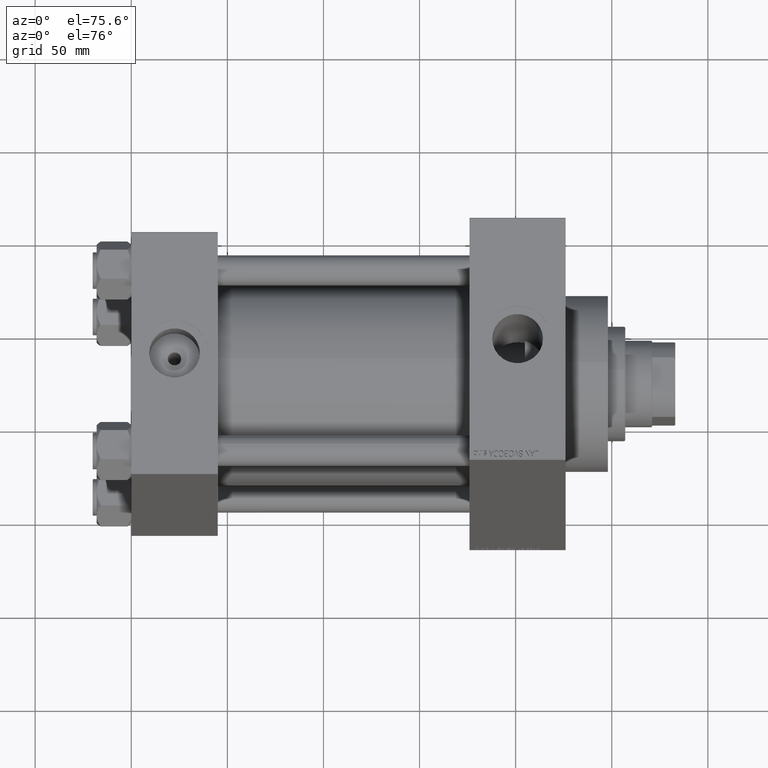
[diagram: clean part render]
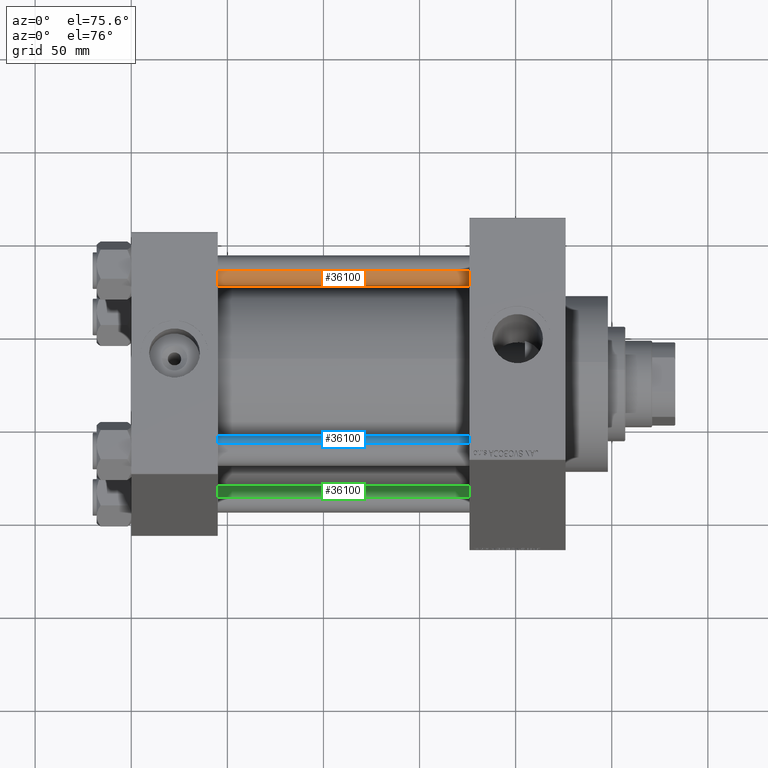
[diagram: same view with three faces highlighted in distinct colors, each labeled with its STEP entity id]
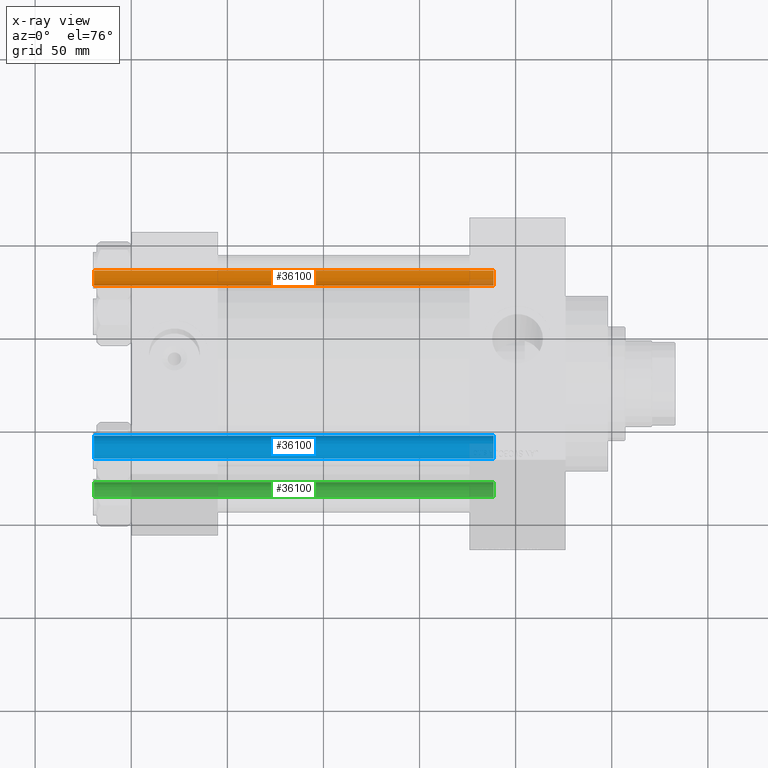
[diagram: x-ray of the same camera — body ghosted, the three highlighted faces saturated]
A machine part, auxiliary view with three faces highlighted in distinct colors.
The next image is the same camera in x-ray (body ghosted, the three faces saturated) — at least one of them is partly hidden behind the body in this view.
Their STEP definitions:

[orange] entity #36100 — the highlighted cylindrical surface (edge-blend (fillet) strip) has radius 8 mm, axis along (-1, -0, 0).
#4 = CIRCLE ( 'NONE', #23968, 8.000000000000000000 ) ;
#347 = CARTESIAN_POINT ( 'NONE',  ( -8.000000000000000000, 0.000000000000000000, 208.4999999999999716 ) ) ;
#489 = CARTESIAN_POINT ( 'NONE',  ( 0.000000000000000000, 0.000000000000000000, 209.0000000000000000 ) ) ;
#1418 = DIRECTION ( 'NONE',  ( 0.000000000000000000, 0.000000000000000000, -1.000000000000000000 ) ) ;
#1479 = CIRCLE ( 'NONE', #37822, 8.000000000000000000 ) ;
#2481 = ORIENTED_EDGE ( 'NONE', *, *, #13907, .T. ) ;
#3496 = EDGE_CURVE ( 'NONE', #47478, #24803, #1479, .T. ) ;
#4343 = DIRECTION ( 'NONE',  ( 1.000000000000000000, 0.000000000000000000, 0.000000000000000000 ) ) ;
#5991 = VECTOR ( 'NONE', #46010, 1000.000000000000000 ) ;
#6610 = EDGE_LOOP ( 'NONE', ( #33314, #23315, #2481, #19896 ) ) ;
#8752 = LINE ( 'NONE', #37147, #5991 ) ;
#10207 = VERTEX_POINT ( 'NONE', #19689 ) ;
#11383 = CARTESIAN_POINT ( 'NONE',  ( 0.000000000000000000, 0.000000000000000000, 208.4999999999999716 ) ) ;
#13907 = EDGE_CURVE ( 'NONE', #39506, #47478, #8752, .T. ) ;
#14095 = EDGE_CURVE ( 'NONE', #10207, #24803, #15002, .T. ) ;
#15002 = LINE ( 'NONE', #47688, #19113 ) ;
#15475 = CARTESIAN_POINT ( 'NONE',  ( 8.000000000000000000, 9.797174393178825657E-16, 0.5000000000000004441 ) ) ;
#18409 = DIRECTION ( 'NONE',  ( -0.000000000000000000, -0.000000000000000000, -1.000000000000000000 ) ) ;
#19113 = VECTOR ( 'NONE', #44524, 1000.000000000000000 ) ;
#19689 = CARTESIAN_POINT ( 'NONE',  ( 8.000000000000000000, 9.797174393178825657E-16, 208.4999999999999716 ) ) ;
#19896 = ORIENTED_EDGE ( 'NONE', *, *, #3496, .T. ) ;
#22087 = CARTESIAN_POINT ( 'NONE',  ( -8.000000000000000000, 0.000000000000000000, 0.5000000000000004441 ) ) ;
#22280 = DIRECTION ( 'NONE',  ( -1.000000000000000000, 0.000000000000000000, 0.000000000000000000 ) ) ;
#23315 = ORIENTED_EDGE ( 'NONE', *, *, #24762, .T. ) ;
#23968 = AXIS2_PLACEMENT_3D ( 'NONE', #11383, #1418, #4343 ) ;
#24762 = EDGE_CURVE ( 'NONE', #10207, #39506, #4, .T. ) ;
#24803 = VERTEX_POINT ( 'NONE', #15475 ) ;
#25199 = CYLINDRICAL_SURFACE ( 'NONE', #45211, 8.000000000000000000 ) ;
#29598 = DIRECTION ( 'NONE',  ( 1.000000000000000000, 0.000000000000000000, 0.000000000000000000 ) ) ;
#32986 = DIRECTION ( 'NONE',  ( -0.000000000000000000, -0.000000000000000000, 1.000000000000000000 ) ) ;
#33178 = FACE_OUTER_BOUND ( 'NONE', #6610, .T. ) ;
#33314 = ORIENTED_EDGE ( 'NONE', *, *, #14095, .F. ) ;
#36100 = ADVANCED_FACE ( 'NONE', ( #33178 ), #25199, .T. ) ;
#37147 = CARTESIAN_POINT ( 'NONE',  ( -8.000000000000000000, 0.000000000000000000, 209.0000000000000000 ) ) ;
#37822 = AXIS2_PLACEMENT_3D ( 'NONE', #40016, #32986, #29598 ) ;
#39506 = VERTEX_POINT ( 'NONE', #347 ) ;
#40016 = CARTESIAN_POINT ( 'NONE',  ( 0.000000000000000000, 0.000000000000000000, 0.5000000000000004441 ) ) ;
#44524 = DIRECTION ( 'NONE',  ( -0.000000000000000000, -0.000000000000000000, -1.000000000000000000 ) ) ;
#45211 = AXIS2_PLACEMENT_3D ( 'NONE', #489, #18409, #22280 ) ;
#46010 = DIRECTION ( 'NONE',  ( -0.000000000000000000, -0.000000000000000000, -1.000000000000000000 ) ) ;
#47478 = VERTEX_POINT ( 'NONE', #22087 ) ;
#47688 = CARTESIAN_POINT ( 'NONE',  ( 8.000000000000000000, 9.797174393178825657E-16, 209.0000000000000000 ) ) ;

[blue] entity #36100 — the highlighted cylindrical surface (edge-blend (fillet) strip) has radius 8 mm, axis along (1, 0, 0).
#4 = CIRCLE ( 'NONE', #23968, 8.000000000000000000 ) ;
#347 = CARTESIAN_POINT ( 'NONE',  ( -8.000000000000000000, 0.000000000000000000, 208.4999999999999716 ) ) ;
#489 = CARTESIAN_POINT ( 'NONE',  ( 0.000000000000000000, 0.000000000000000000, 209.0000000000000000 ) ) ;
#1418 = DIRECTION ( 'NONE',  ( 0.000000000000000000, 0.000000000000000000, -1.000000000000000000 ) ) ;
#1479 = CIRCLE ( 'NONE', #37822, 8.000000000000000000 ) ;
#2481 = ORIENTED_EDGE ( 'NONE', *, *, #13907, .T. ) ;
#3496 = EDGE_CURVE ( 'NONE', #47478, #24803, #1479, .T. ) ;
#4343 = DIRECTION ( 'NONE',  ( 1.000000000000000000, 0.000000000000000000, 0.000000000000000000 ) ) ;
#5991 = VECTOR ( 'NONE', #46010, 1000.000000000000000 ) ;
#6610 = EDGE_LOOP ( 'NONE', ( #33314, #23315, #2481, #19896 ) ) ;
#8752 = LINE ( 'NONE', #37147, #5991 ) ;
#10207 = VERTEX_POINT ( 'NONE', #19689 ) ;
#11383 = CARTESIAN_POINT ( 'NONE',  ( 0.000000000000000000, 0.000000000000000000, 208.4999999999999716 ) ) ;
#13907 = EDGE_CURVE ( 'NONE', #39506, #47478, #8752, .T. ) ;
#14095 = EDGE_CURVE ( 'NONE', #10207, #24803, #15002, .T. ) ;
#15002 = LINE ( 'NONE', #47688, #19113 ) ;
#15475 = CARTESIAN_POINT ( 'NONE',  ( 8.000000000000000000, 9.797174393178825657E-16, 0.5000000000000004441 ) ) ;
#18409 = DIRECTION ( 'NONE',  ( -0.000000000000000000, -0.000000000000000000, -1.000000000000000000 ) ) ;
#19113 = VECTOR ( 'NONE', #44524, 1000.000000000000000 ) ;
#19689 = CARTESIAN_POINT ( 'NONE',  ( 8.000000000000000000, 9.797174393178825657E-16, 208.4999999999999716 ) ) ;
#19896 = ORIENTED_EDGE ( 'NONE', *, *, #3496, .T. ) ;
#22087 = CARTESIAN_POINT ( 'NONE',  ( -8.000000000000000000, 0.000000000000000000, 0.5000000000000004441 ) ) ;
#22280 = DIRECTION ( 'NONE',  ( -1.000000000000000000, 0.000000000000000000, 0.000000000000000000 ) ) ;
#23315 = ORIENTED_EDGE ( 'NONE', *, *, #24762, .T. ) ;
#23968 = AXIS2_PLACEMENT_3D ( 'NONE', #11383, #1418, #4343 ) ;
#24762 = EDGE_CURVE ( 'NONE', #10207, #39506, #4, .T. ) ;
#24803 = VERTEX_POINT ( 'NONE', #15475 ) ;
#25199 = CYLINDRICAL_SURFACE ( 'NONE', #45211, 8.000000000000000000 ) ;
#29598 = DIRECTION ( 'NONE',  ( 1.000000000000000000, 0.000000000000000000, 0.000000000000000000 ) ) ;
#32986 = DIRECTION ( 'NONE',  ( -0.000000000000000000, -0.000000000000000000, 1.000000000000000000 ) ) ;
#33178 = FACE_OUTER_BOUND ( 'NONE', #6610, .T. ) ;
#33314 = ORIENTED_EDGE ( 'NONE', *, *, #14095, .F. ) ;
#36100 = ADVANCED_FACE ( 'NONE', ( #33178 ), #25199, .T. ) ;
#37147 = CARTESIAN_POINT ( 'NONE',  ( -8.000000000000000000, 0.000000000000000000, 209.0000000000000000 ) ) ;
#37822 = AXIS2_PLACEMENT_3D ( 'NONE', #40016, #32986, #29598 ) ;
#39506 = VERTEX_POINT ( 'NONE', #347 ) ;
#40016 = CARTESIAN_POINT ( 'NONE',  ( 0.000000000000000000, 0.000000000000000000, 0.5000000000000004441 ) ) ;
#44524 = DIRECTION ( 'NONE',  ( -0.000000000000000000, -0.000000000000000000, -1.000000000000000000 ) ) ;
#45211 = AXIS2_PLACEMENT_3D ( 'NONE', #489, #18409, #22280 ) ;
#46010 = DIRECTION ( 'NONE',  ( -0.000000000000000000, -0.000000000000000000, -1.000000000000000000 ) ) ;
#47478 = VERTEX_POINT ( 'NONE', #22087 ) ;
#47688 = CARTESIAN_POINT ( 'NONE',  ( 8.000000000000000000, 9.797174393178825657E-16, 209.0000000000000000 ) ) ;

[green] entity #36100 — the highlighted cylindrical surface (edge-blend (fillet) strip) has radius 8 mm, axis along (-1, 0, 0).
#4 = CIRCLE ( 'NONE', #23968, 8.000000000000000000 ) ;
#347 = CARTESIAN_POINT ( 'NONE',  ( -8.000000000000000000, 0.000000000000000000, 208.4999999999999716 ) ) ;
#489 = CARTESIAN_POINT ( 'NONE',  ( 0.000000000000000000, 0.000000000000000000, 209.0000000000000000 ) ) ;
#1418 = DIRECTION ( 'NONE',  ( 0.000000000000000000, 0.000000000000000000, -1.000000000000000000 ) ) ;
#1479 = CIRCLE ( 'NONE', #37822, 8.000000000000000000 ) ;
#2481 = ORIENTED_EDGE ( 'NONE', *, *, #13907, .T. ) ;
#3496 = EDGE_CURVE ( 'NONE', #47478, #24803, #1479, .T. ) ;
#4343 = DIRECTION ( 'NONE',  ( 1.000000000000000000, 0.000000000000000000, 0.000000000000000000 ) ) ;
#5991 = VECTOR ( 'NONE', #46010, 1000.000000000000000 ) ;
#6610 = EDGE_LOOP ( 'NONE', ( #33314, #23315, #2481, #19896 ) ) ;
#8752 = LINE ( 'NONE', #37147, #5991 ) ;
#10207 = VERTEX_POINT ( 'NONE', #19689 ) ;
#11383 = CARTESIAN_POINT ( 'NONE',  ( 0.000000000000000000, 0.000000000000000000, 208.4999999999999716 ) ) ;
#13907 = EDGE_CURVE ( 'NONE', #39506, #47478, #8752, .T. ) ;
#14095 = EDGE_CURVE ( 'NONE', #10207, #24803, #15002, .T. ) ;
#15002 = LINE ( 'NONE', #47688, #19113 ) ;
#15475 = CARTESIAN_POINT ( 'NONE',  ( 8.000000000000000000, 9.797174393178825657E-16, 0.5000000000000004441 ) ) ;
#18409 = DIRECTION ( 'NONE',  ( -0.000000000000000000, -0.000000000000000000, -1.000000000000000000 ) ) ;
#19113 = VECTOR ( 'NONE', #44524, 1000.000000000000000 ) ;
#19689 = CARTESIAN_POINT ( 'NONE',  ( 8.000000000000000000, 9.797174393178825657E-16, 208.4999999999999716 ) ) ;
#19896 = ORIENTED_EDGE ( 'NONE', *, *, #3496, .T. ) ;
#22087 = CARTESIAN_POINT ( 'NONE',  ( -8.000000000000000000, 0.000000000000000000, 0.5000000000000004441 ) ) ;
#22280 = DIRECTION ( 'NONE',  ( -1.000000000000000000, 0.000000000000000000, 0.000000000000000000 ) ) ;
#23315 = ORIENTED_EDGE ( 'NONE', *, *, #24762, .T. ) ;
#23968 = AXIS2_PLACEMENT_3D ( 'NONE', #11383, #1418, #4343 ) ;
#24762 = EDGE_CURVE ( 'NONE', #10207, #39506, #4, .T. ) ;
#24803 = VERTEX_POINT ( 'NONE', #15475 ) ;
#25199 = CYLINDRICAL_SURFACE ( 'NONE', #45211, 8.000000000000000000 ) ;
#29598 = DIRECTION ( 'NONE',  ( 1.000000000000000000, 0.000000000000000000, 0.000000000000000000 ) ) ;
#32986 = DIRECTION ( 'NONE',  ( -0.000000000000000000, -0.000000000000000000, 1.000000000000000000 ) ) ;
#33178 = FACE_OUTER_BOUND ( 'NONE', #6610, .T. ) ;
#33314 = ORIENTED_EDGE ( 'NONE', *, *, #14095, .F. ) ;
#36100 = ADVANCED_FACE ( 'NONE', ( #33178 ), #25199, .T. ) ;
#37147 = CARTESIAN_POINT ( 'NONE',  ( -8.000000000000000000, 0.000000000000000000, 209.0000000000000000 ) ) ;
#37822 = AXIS2_PLACEMENT_3D ( 'NONE', #40016, #32986, #29598 ) ;
#39506 = VERTEX_POINT ( 'NONE', #347 ) ;
#40016 = CARTESIAN_POINT ( 'NONE',  ( 0.000000000000000000, 0.000000000000000000, 0.5000000000000004441 ) ) ;
#44524 = DIRECTION ( 'NONE',  ( -0.000000000000000000, -0.000000000000000000, -1.000000000000000000 ) ) ;
#45211 = AXIS2_PLACEMENT_3D ( 'NONE', #489, #18409, #22280 ) ;
#46010 = DIRECTION ( 'NONE',  ( -0.000000000000000000, -0.000000000000000000, -1.000000000000000000 ) ) ;
#47478 = VERTEX_POINT ( 'NONE', #22087 ) ;
#47688 = CARTESIAN_POINT ( 'NONE',  ( 8.000000000000000000, 9.797174393178825657E-16, 209.0000000000000000 ) ) ;